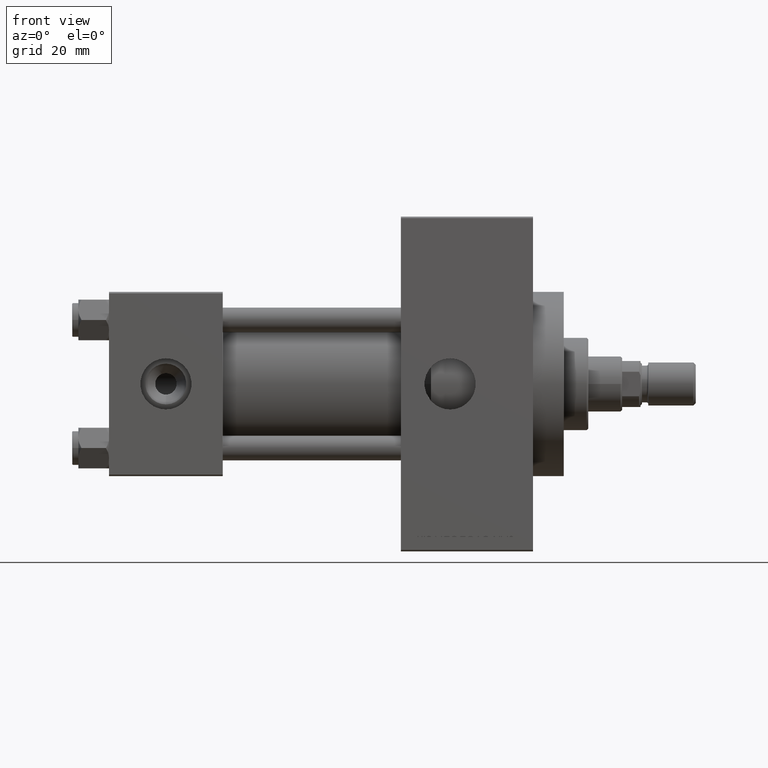
[diagram: clean part render]
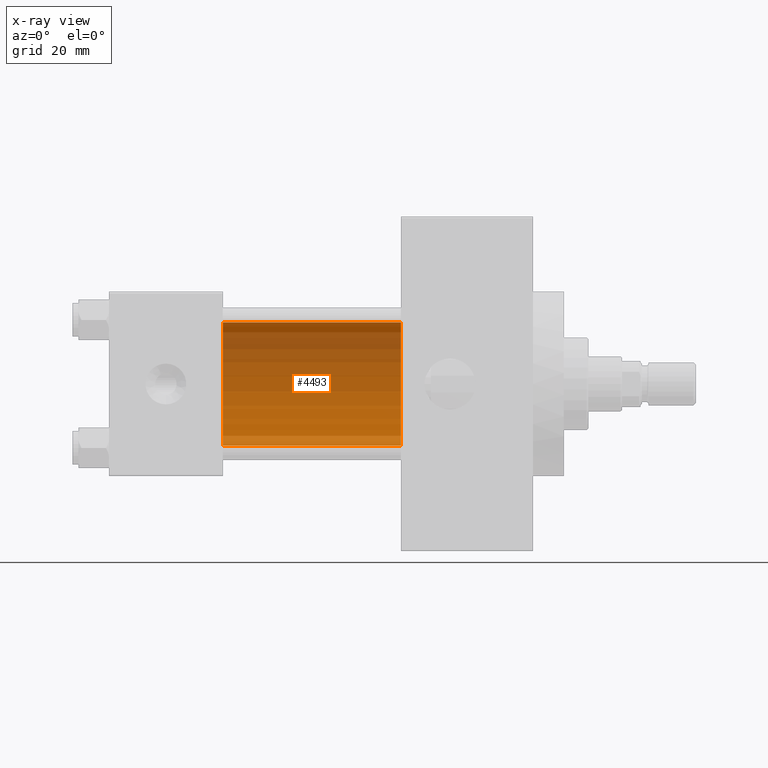
[diagram: x-ray — body ghosted, one internal face saturated and labeled with its STEP entity id]
A machine part, front view, then the same camera in x-ray: the body is ghosted and one INTERNAL B-rep face — a face not visible from any outside direction — is saturated and labeled: STEP entity #4493.
In plain terms, the highlighted cylindrical surface (partial cylindrical patch) has radius 20 mm, axis along (-1, -0, -0).
Its self-contained STEP definition (entity closure, byte-faithful):
#312 = VERTEX_POINT ( 'NONE', #4603 ) ;
#833 = VERTEX_POINT ( 'NONE', #33046 ) ;
#1420 = CIRCLE ( 'NONE', #47844, 20.00000000000000000 ) ;
#2732 = LINE ( 'NONE', #28664, #46049 ) ;
#3163 = EDGE_CURVE ( 'NONE', #312, #32274, #23740, .T. ) ;
#3807 = ORIENTED_EDGE ( 'NONE', *, *, #3163, .T. ) ;
#4493 = ADVANCED_FACE ( 'NONE', ( #10233 ), #29112, .F. ) ;
#4603 = CARTESIAN_POINT ( 'NONE',  ( 95.00000000000000000, -2.602085213965210642E-15, 20.00000000000000000 ) ) ;
#5898 = DIRECTION ( 'NONE',  ( -1.000000000000000000, -0.000000000000000000, -0.000000000000000000 ) ) ;
#10233 = FACE_OUTER_BOUND ( 'NONE', #16169, .T. ) ;
#10495 = CIRCLE ( 'NONE', #29070, 20.00000000000000000 ) ;
#11131 = EDGE_CURVE ( 'NONE', #11513, #833, #2732, .T. ) ;
#11513 = VERTEX_POINT ( 'NONE', #35633 ) ;
#13617 = EDGE_CURVE ( 'NONE', #11513, #312, #10495, .T. ) ;
#14110 = CARTESIAN_POINT ( 'NONE',  ( 95.00000000000000000, -2.602085213965210642E-15, 0.000000000000000000 ) ) ;
#15875 = ORIENTED_EDGE ( 'NONE', *, *, #22753, .F. ) ;
#16129 = CARTESIAN_POINT ( 'NONE',  ( 37.00000000000000000, -2.602085213965210642E-15, 0.000000000000000000 ) ) ;
#16169 = EDGE_LOOP ( 'NONE', ( #30573, #41558, #3807, #15875 ) ) ;
#17208 = CARTESIAN_POINT ( 'NONE',  ( 95.00000000000000000, -2.602085213965210642E-15, 0.000000000000000000 ) ) ;
#17937 = AXIS2_PLACEMENT_3D ( 'NONE', #14110, #21133, #40498 ) ;
#20209 = VECTOR ( 'NONE', #38044, 1000.000000000000000 ) ;
#21133 = DIRECTION ( 'NONE',  ( -1.000000000000000000, -0.000000000000000000, -0.000000000000000000 ) ) ;
#22753 = EDGE_CURVE ( 'NONE', #833, #32274, #1420, .T. ) ;
#23740 = LINE ( 'NONE', #38515, #20209 ) ;
#28664 = CARTESIAN_POINT ( 'NONE',  ( 95.00000000000000000, -1.527916156705046464E-16, -20.00000000000000000 ) ) ;
#29070 = AXIS2_PLACEMENT_3D ( 'NONE', #17208, #35858, #36335 ) ;
#29112 = CYLINDRICAL_SURFACE ( 'NONE', #17937, 20.00000000000000000 ) ;
#30446 = CARTESIAN_POINT ( 'NONE',  ( 37.00000000000000000, -2.602085213965210642E-15, 20.00000000000000000 ) ) ;
#30573 = ORIENTED_EDGE ( 'NONE', *, *, #11131, .F. ) ;
#30914 = DIRECTION ( 'NONE',  ( 1.000000000000000000, 0.000000000000000000, 0.000000000000000000 ) ) ;
#32274 = VERTEX_POINT ( 'NONE', #30446 ) ;
#33046 = CARTESIAN_POINT ( 'NONE',  ( 37.00000000000000000, -1.527916156705046464E-16, -20.00000000000000000 ) ) ;
#35633 = CARTESIAN_POINT ( 'NONE',  ( 95.00000000000000000, -1.527916156705046464E-16, -20.00000000000000000 ) ) ;
#35858 = DIRECTION ( 'NONE',  ( 1.000000000000000000, 0.000000000000000000, 0.000000000000000000 ) ) ;
#36335 = DIRECTION ( 'NONE',  ( 0.000000000000000000, 0.000000000000000000, -1.000000000000000000 ) ) ;
#38044 = DIRECTION ( 'NONE',  ( -1.000000000000000000, -0.000000000000000000, -0.000000000000000000 ) ) ;
#38515 = CARTESIAN_POINT ( 'NONE',  ( 95.00000000000000000, -2.602085213965210642E-15, 20.00000000000000000 ) ) ;
#40498 = DIRECTION ( 'NONE',  ( 0.000000000000000000, 0.000000000000000000, 1.000000000000000000 ) ) ;
#41558 = ORIENTED_EDGE ( 'NONE', *, *, #13617, .T. ) ;
#45682 = DIRECTION ( 'NONE',  ( 0.000000000000000000, 0.000000000000000000, -1.000000000000000000 ) ) ;
#46049 = VECTOR ( 'NONE', #5898, 1000.000000000000000 ) ;
#47844 = AXIS2_PLACEMENT_3D ( 'NONE', #16129, #30914, #45682 ) ;